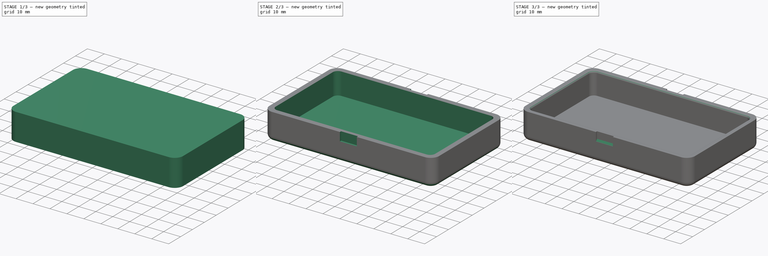
[diagram: build sequence overview — one tinted view per stage of 3, left to right]
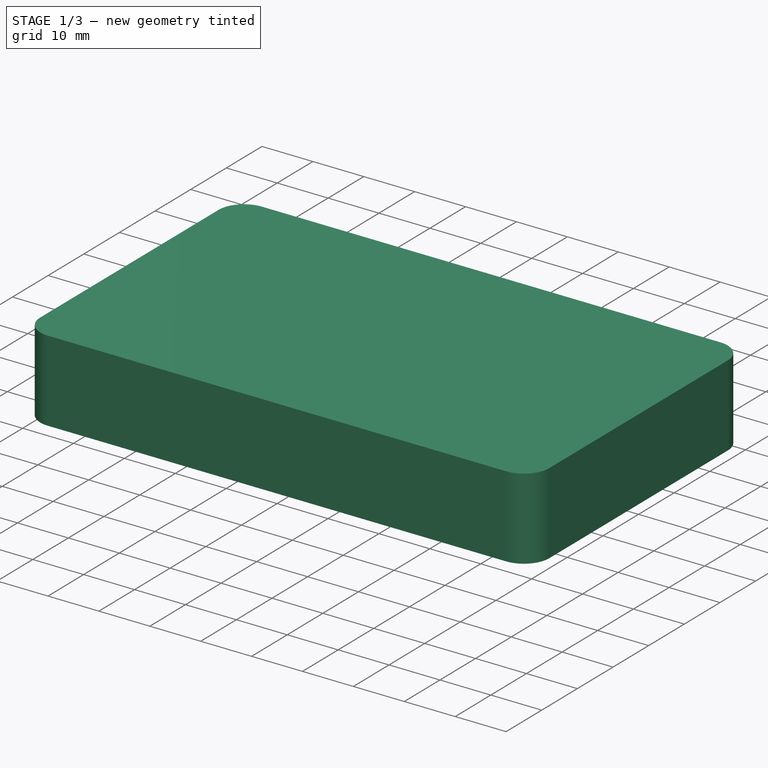
[diagram: stage 1 of 3 — iso view after this stage's code; geometry added in this stage tinted green]
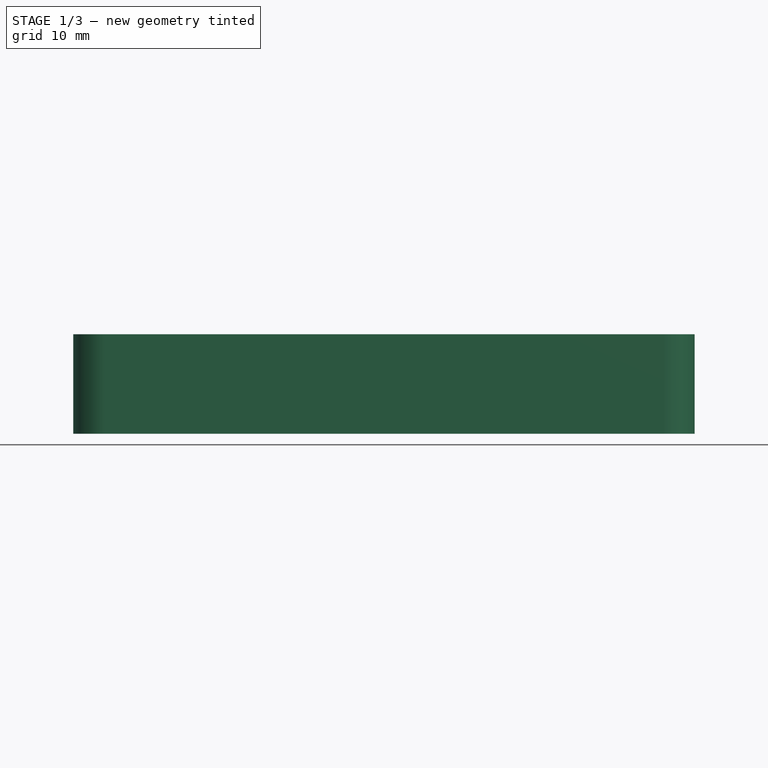
[diagram: stage 1 of 3 — front view after this stage's code; geometry added in this stage tinted green]
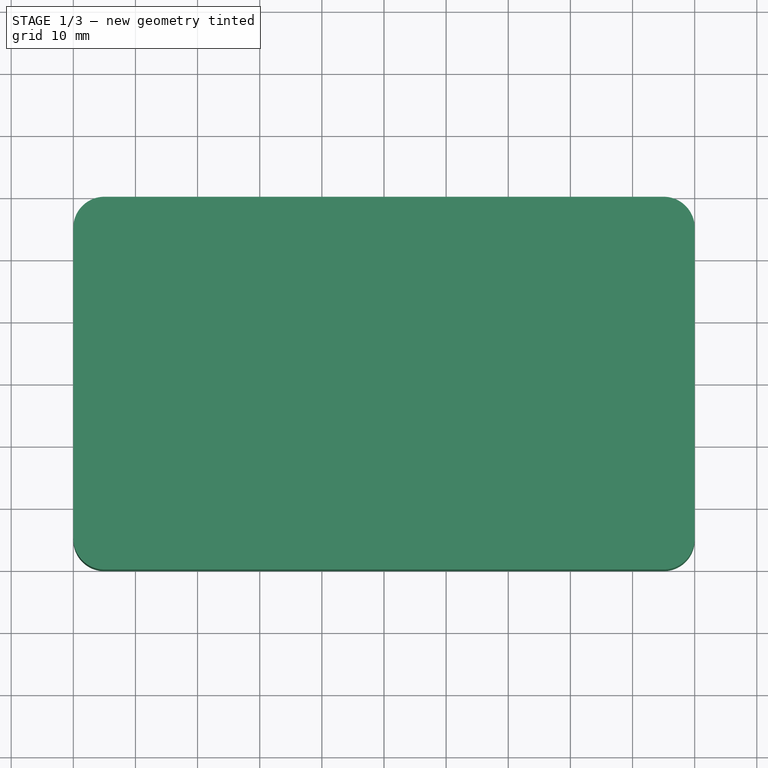
[diagram: stage 1 of 3 — top view after this stage's code; geometry added in this stage tinted green]
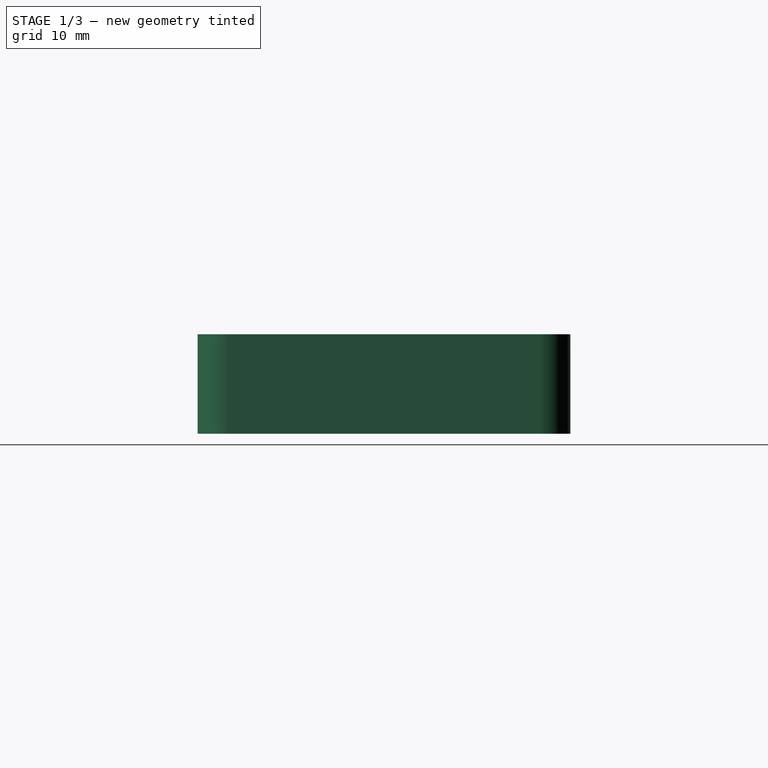
[diagram: stage 1 of 3 — right view after this stage's code; geometry added in this stage tinted green]
FCSTD DOCUMENT  (FreeCAD 0.19R24291 (Git))
Label: funnybox-v3
License: All rights reserved
LicenseURL: http://en.wikipedia.org/wiki/All_rights_reserved
objects: Sketcher::SketchObject×3, PartDesign::Fillet×3, PartDesign::Pocket×2, PartDesign::Pad×1, PartDesign::Chamfer×1, PartDesign::Body×1
note: 18 computed .brp shape members not serialized (recipe doc carries the construction recipe); baked Part::Feature solids carry a one-line shape summary decoded from their .brp

FEATURE [Sketcher::SketchObject] Sketch
  FullyConstrained = true
  MapMode = 5
  Support = -> [XY_Plane]
  sketch-geometry (4):
    g0: LineSegment StartX=0 StartY=0 StartZ=0 EndX=100 EndY=0 EndZ=0
    g1: LineSegment StartX=100 StartY=0 StartZ=0 EndX=100 EndY=60 EndZ=0
    g2: LineSegment StartX=100 StartY=60 StartZ=0 EndX=0 EndY=60 EndZ=0
    g3: LineSegment StartX=0 StartY=60 StartZ=0 EndX=0 EndY=0 EndZ=0
  constraints (12):
    c: Coincident(g0,g1)
    c: Coincident(g1,g2)
    c: Coincident(g2,g3)
    c: Coincident(g3,g0)
    c: Horizontal(g0)
    c: Horizontal(g2)
    c: Vertical(g1)
    c: Vertical(g3)
    c: DistanceX(g0) = 0
    c: DistanceY(g0) = 0
    c: DistanceX(g2,g2) = 100
    c: DistanceY(g3,g3) = 60
FEATURE [PartDesign::Pad] Pad  label="Main"
  Direction = (1,1,1)
  Length = 16
  Length2 = 100
  Profile = -> Sketch
  Type = 0
FEATURE [Sketcher::SketchObject] Sketch001
  FullyConstrained = true
  MapMode = 5
  Placement = pos=(0,0,16) rot=(0,0,1;0rad)
  Support = -> [Pad]
  sketch-geometry (12):
    g0: LineSegment StartX=6 StartY=3 StartZ=0 EndX=94 EndY=3 EndZ=0
    g1: LineSegment StartX=97 StartY=6 StartZ=0 EndX=97 EndY=54 EndZ=0
    g2: LineSegment StartX=94 StartY=57 StartZ=0 EndX=6 EndY=57 EndZ=0
    g3: LineSegment StartX=3 StartY=54 StartZ=0 EndX=3 EndY=6 EndZ=0
    g4: ArcOfCircle CenterX=6 CenterY=54 CenterZ=0 NormalX=0 NormalY=0 NormalZ=1 AngleXU=0 Radius=3 StartAngle=1.5708 EndAngle=3.14159
    g5: GeomPoint X=3 Y=57 Z=0
    g6: ArcOfCircle CenterX=6 CenterY=6 CenterZ=0 NormalX=0 NormalY=0 NormalZ=1 AngleXU=0 Radius=3 StartAngle=3.14159 EndAngle=4.71239
    g7: GeomPoint X=3 Y=3 Z=0
    g8: ArcOfCircle CenterX=94 CenterY=54 CenterZ=0 NormalX=0 NormalY=0 NormalZ=1 AngleXU=0 Radius=3 StartAngle=-9e-16 EndAngle=1.5708
    g9: GeomPoint X=97 Y=57 Z=0
    g10: ArcOfCircle CenterX=94 CenterY=6 CenterZ=0 NormalX=0 NormalY=0 NormalZ=1 AngleXU=0 Radius=3 StartAngle=4.71239 EndAngle=6.28319
    g11: GeomPoint X=97 Y=3 Z=0
  constraints (28):
    c: Horizontal(g0)
    c: Horizontal(g2)
    c: Vertical(g1)
    c: Vertical(g3)
    c: DistanceX(g7) = 3
    c: DistanceY(g7) = 3
    c: DistanceX(g7,g11) = 94
    c: DistanceY(g7,g5) = 54
    c: PointOnObject(g5,g2)
    c: PointOnObject(g5,g3)
    c: Tangent(g2,g4) = -1.5708
    c: Tangent(g3,g4) = -1.5708
    c: PointOnObject(g7,g0)
    c: PointOnObject(g7,g3)
    c: Tangent(g0,g6) = -1.5708
    c: Tangent(g3,g6) = -1.5708
    c: PointOnObject(g9,g1)
    c: PointOnObject(g9,g2)
    c: Tangent(g1,g8) = -1.5708
    c: Tangent(g2,g8) = -1.5708
    c: PointOnObject(g11,g0)
    c: PointOnObject(g11,g1)
    c: Tangent(g0,g10) = -1.5708
    c: Tangent(g1,g10) = -1.5708
    c: Radius(g4) = 3
    c: Radius(g6) = 3
    c: Radius(g8) = 3
    c: Radius(g10) = 3
FEATURE [PartDesign::Fillet] Fillet
  Base = -> Pad [Edge2,Edge5,Edge8,Edge1]
  BaseFeature = -> Pad
  Radius = 5
  SupportTransform = false
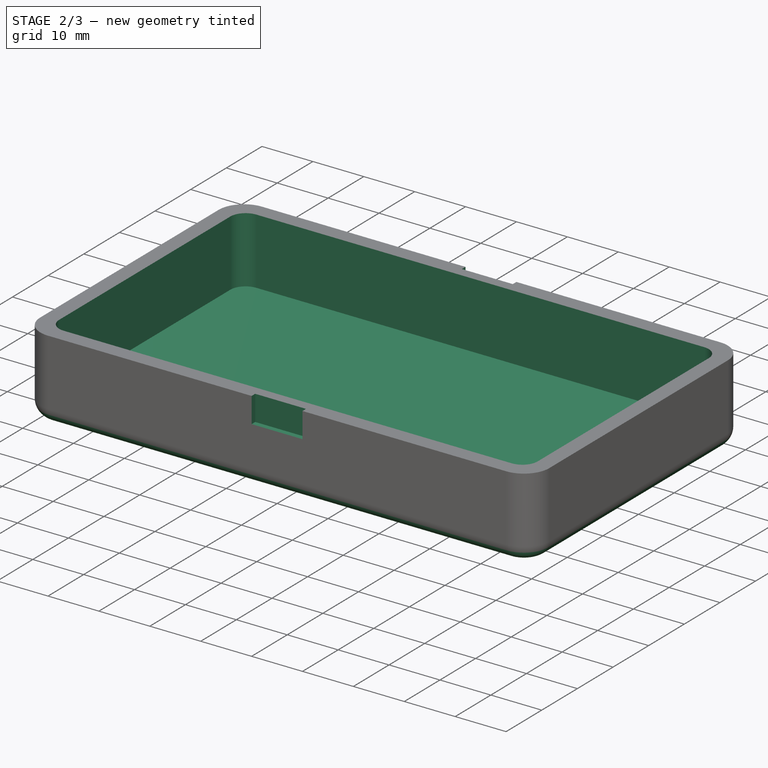
[diagram: stage 2 of 3 — iso view after this stage's code; geometry added in this stage tinted green]
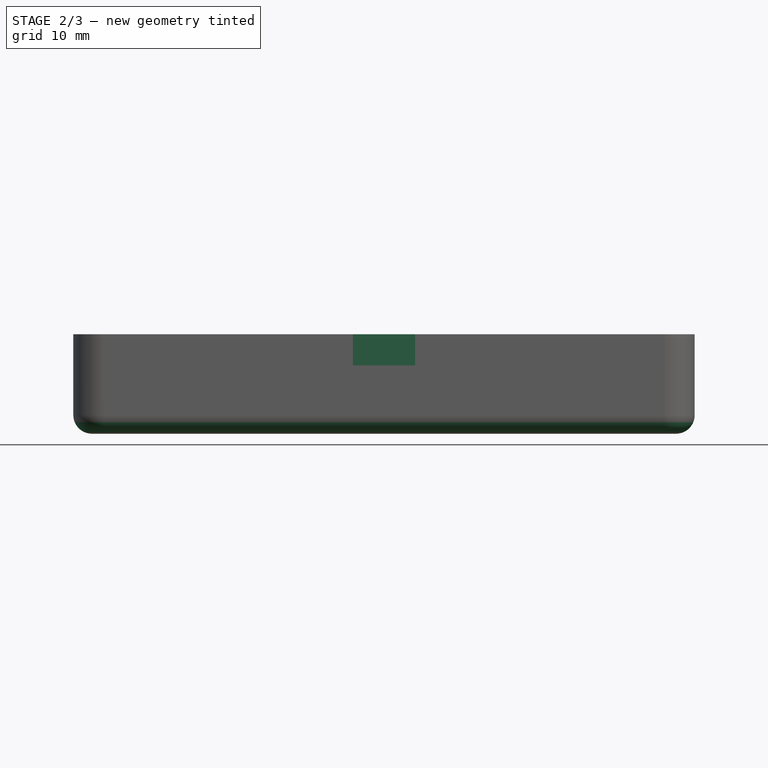
[diagram: stage 2 of 3 — front view after this stage's code; geometry added in this stage tinted green]
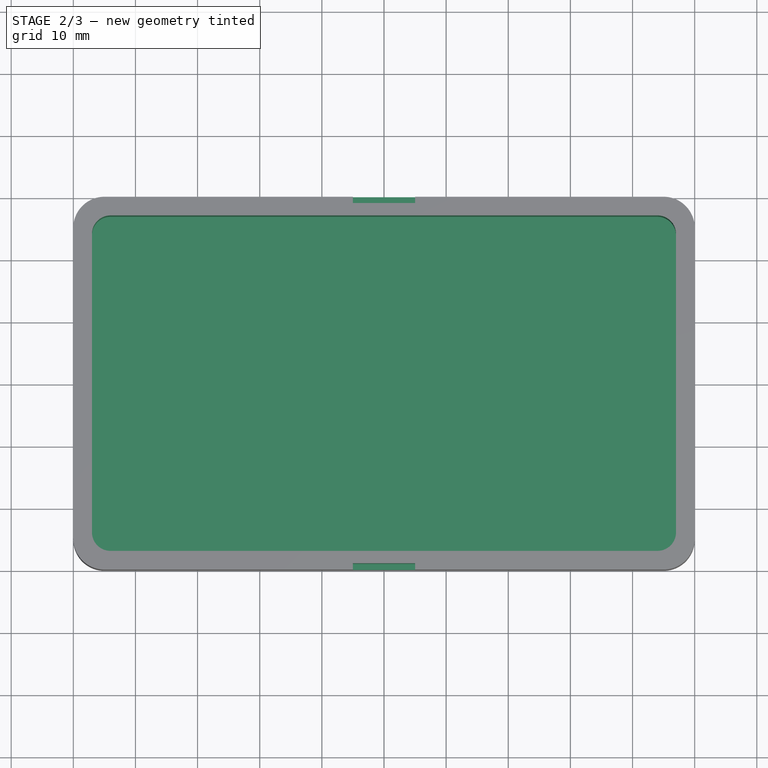
[diagram: stage 2 of 3 — top view after this stage's code; geometry added in this stage tinted green]
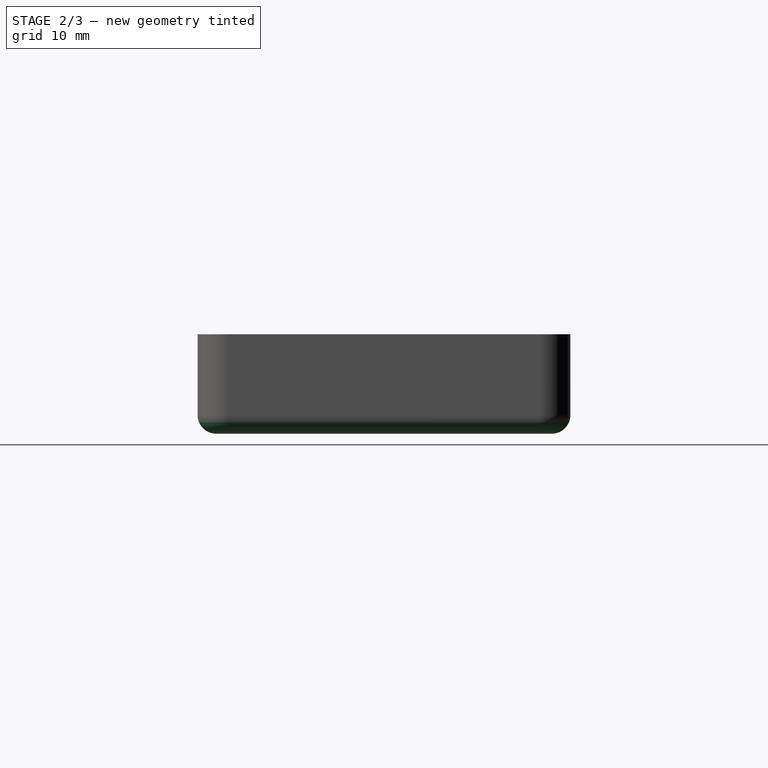
[diagram: stage 2 of 3 — right view after this stage's code; geometry added in this stage tinted green]
FEATURE [PartDesign::Fillet] Fillet001
  Base = -> Fillet [Edge11]
  BaseFeature = -> Fillet
  Radius = 3
  SupportTransform = false
FEATURE [PartDesign::Pocket] Pocket  label="Main hole"
  BaseFeature = -> Fillet001
  Length = 13
  Length2 = 100
  Profile = -> Sketch001
  Type = 0
FEATURE [Sketcher::SketchObject] Sketch002
  FullyConstrained = true
  MapMode = 5
  Placement = pos=(0,0,16) rot=(0,0,1;0rad)
  Support = -> [Pocket]
  sketch-geometry (8):
    g0: LineSegment StartX=45 StartY=0 StartZ=0 EndX=55 EndY=0 EndZ=0
    g1: LineSegment StartX=55 StartY=0 StartZ=0 EndX=55 EndY=1 EndZ=0
    g2: LineSegment StartX=55 StartY=1 StartZ=0 EndX=45 EndY=1 EndZ=0
    g3: LineSegment StartX=45 StartY=1 StartZ=0 EndX=45 EndY=0 EndZ=0
    g4: LineSegment StartX=45 StartY=60 StartZ=0 EndX=55 EndY=60 EndZ=0
    g5: LineSegment StartX=55 StartY=60 StartZ=0 EndX=55 EndY=59 EndZ=0
    g6: LineSegment StartX=55 StartY=59 StartZ=0 EndX=45 EndY=59 EndZ=0
    g7: LineSegment StartX=45 StartY=59 StartZ=0 EndX=45 EndY=60 EndZ=0
  constraints (24):
    c: Coincident(g0,g1)
    c: Coincident(g1,g2)
    c: Coincident(g2,g3)
    c: Coincident(g3,g0)
    c: Horizontal(g0)
    c: Horizontal(g2)
    c: Vertical(g1)
    c: Vertical(g3)
    c: DistanceX(g0) = 45
    c: DistanceY(g0) = 0
    c: DistanceX(g0,g0) = 10
    c: DistanceY(g3,g3) = 1
    c: Coincident(g4,g5)
    c: Coincident(g5,g6)
    c: Coincident(g6,g7)
    c: Coincident(g7,g4)
    c: Horizontal(g4)
    c: Horizontal(g6)
    c: Vertical(g5)
    c: Vertical(g7)
    c: DistanceX(g4) = 45
    c: DistanceY(g4) = 60
    c: DistanceY(g7,g7) = 1
    c: DistanceX(g6,g6) = 10
FEATURE [PartDesign::Pocket] Pocket001
  BaseFeature = -> Pocket
  Length = 5
  Length2 = 100
  Profile = -> Sketch002
  Type = 0
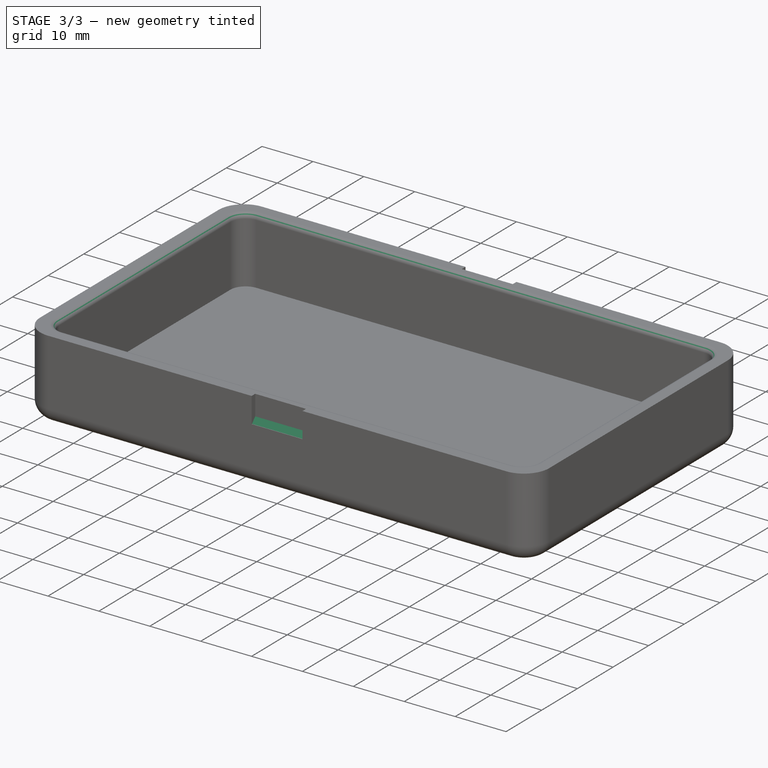
[diagram: stage 3 of 3 — iso view after this stage's code; geometry added in this stage tinted green]
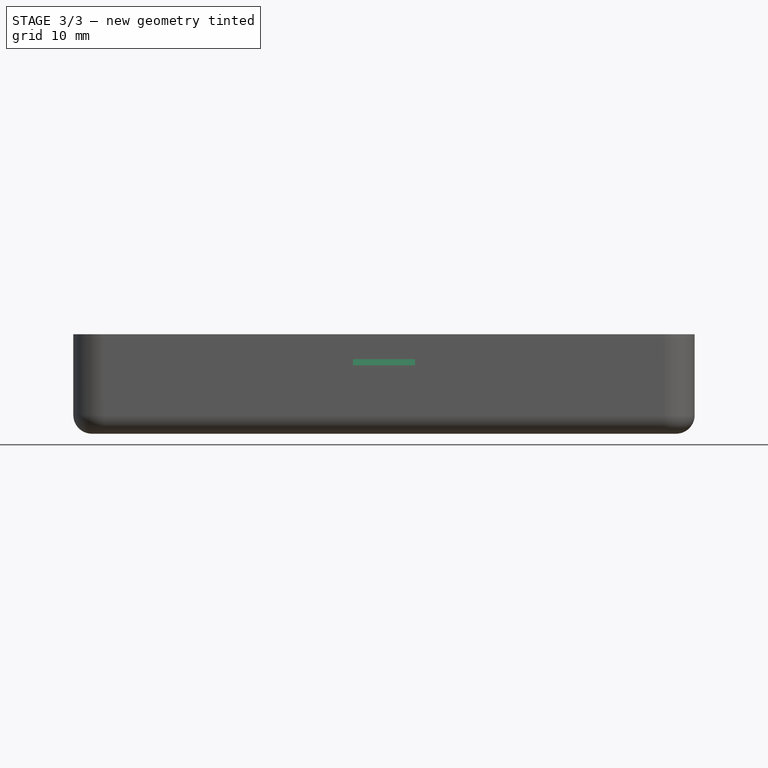
[diagram: stage 3 of 3 — front view after this stage's code; geometry added in this stage tinted green]
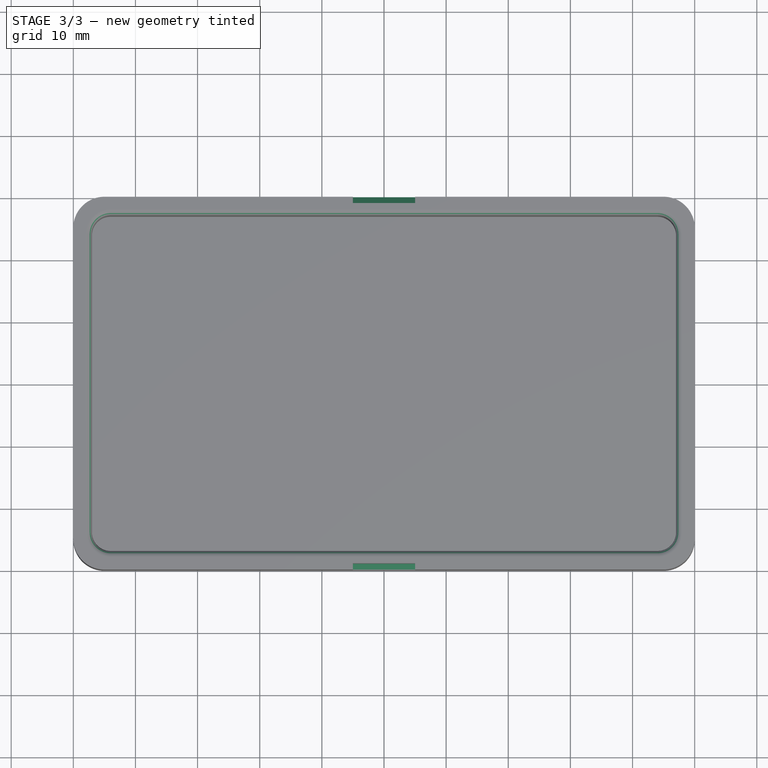
[diagram: stage 3 of 3 — top view after this stage's code; geometry added in this stage tinted green]
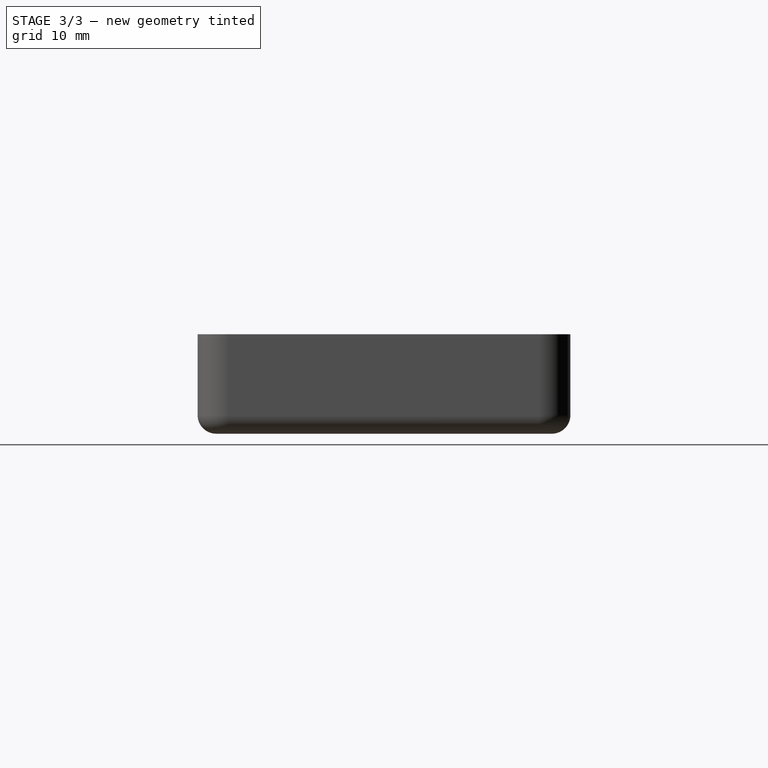
[diagram: stage 3 of 3 — right view after this stage's code; geometry added in this stage tinted green]
FEATURE [PartDesign::Chamfer] Chamfer
  Angle = 48
  Base = -> Pocket001 [Edge66,Edge38]
  BaseFeature = -> Pocket001
  ChamferType = 2
  FlipDirection = false
  Size = 0.9
  Size2 = 1
  SupportTransform = false
FEATURE [PartDesign::Fillet] Fillet002
  Base = -> Chamfer [Edge28]
  BaseFeature = -> Chamfer
  Radius = 1
  SupportTransform = false
FEATURE [PartDesign::Body] Body
  Group = -> [Sketch,Pad,Sketch001,Fillet,Fillet001,Pocket,Sketch002,Pocket001,Chamfer,Fillet002]
  Origin = -> Origin
  Tip = -> Fillet002
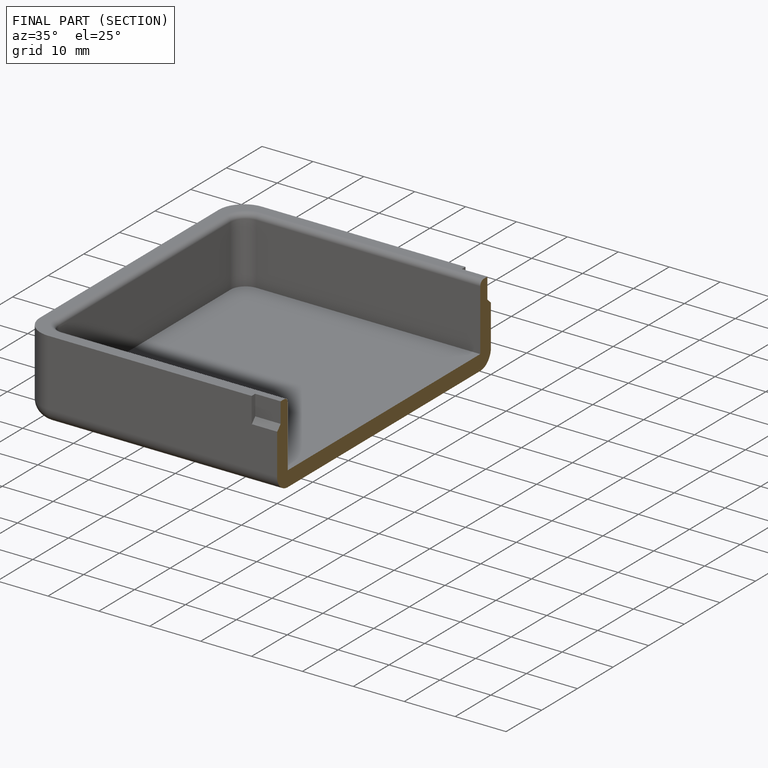
[diagram: finished part — half-section view (interior)]
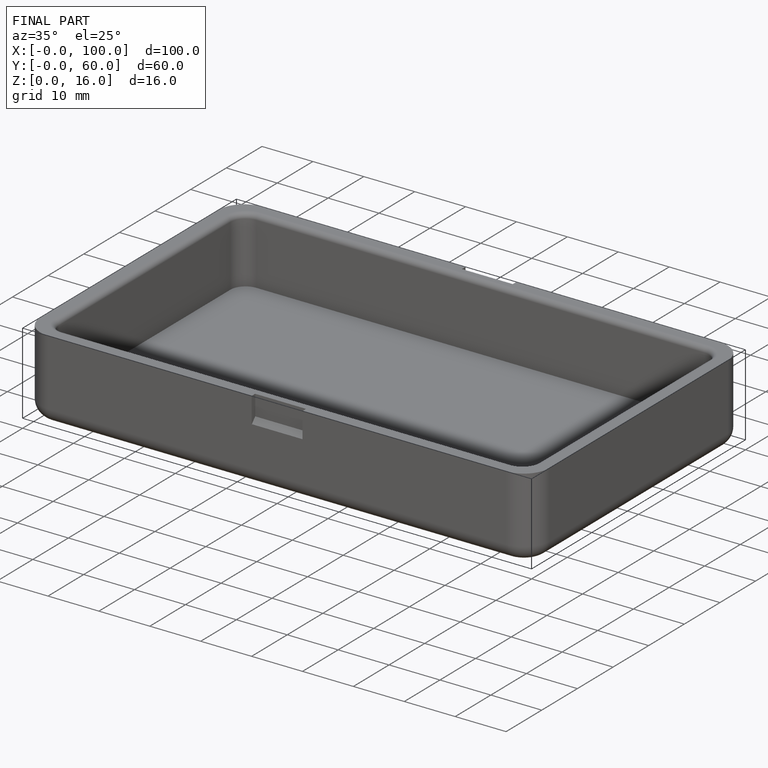
[diagram: finished part — iso view with bounding-box wireframe]
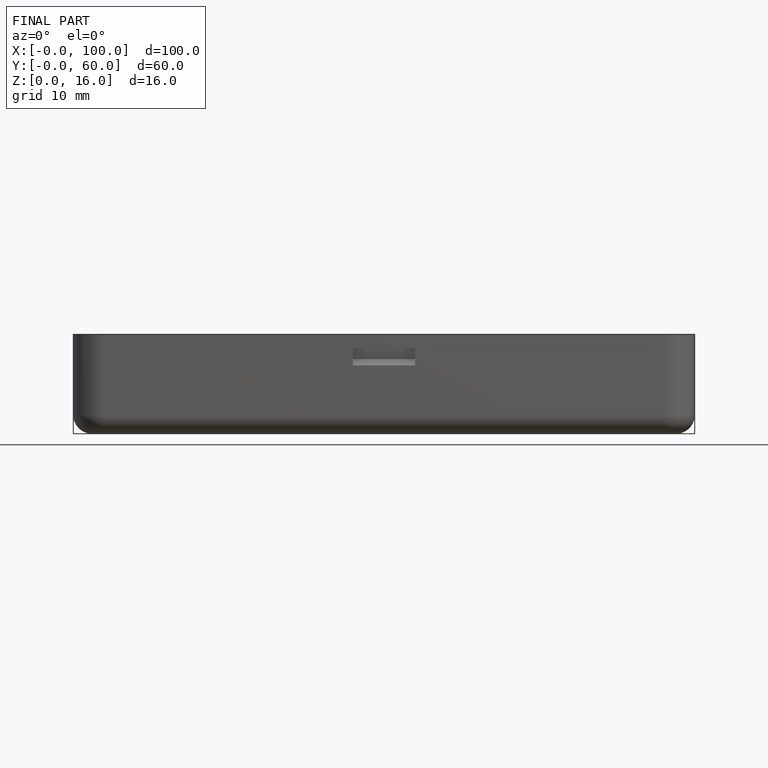
[diagram: finished part — front view with bounding-box wireframe]
